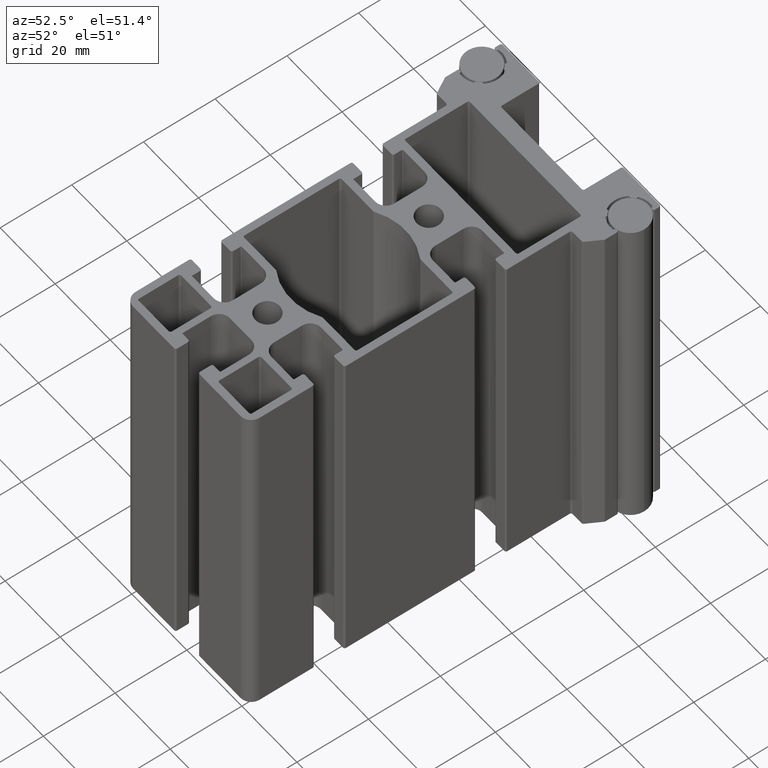
[diagram: clean part render]
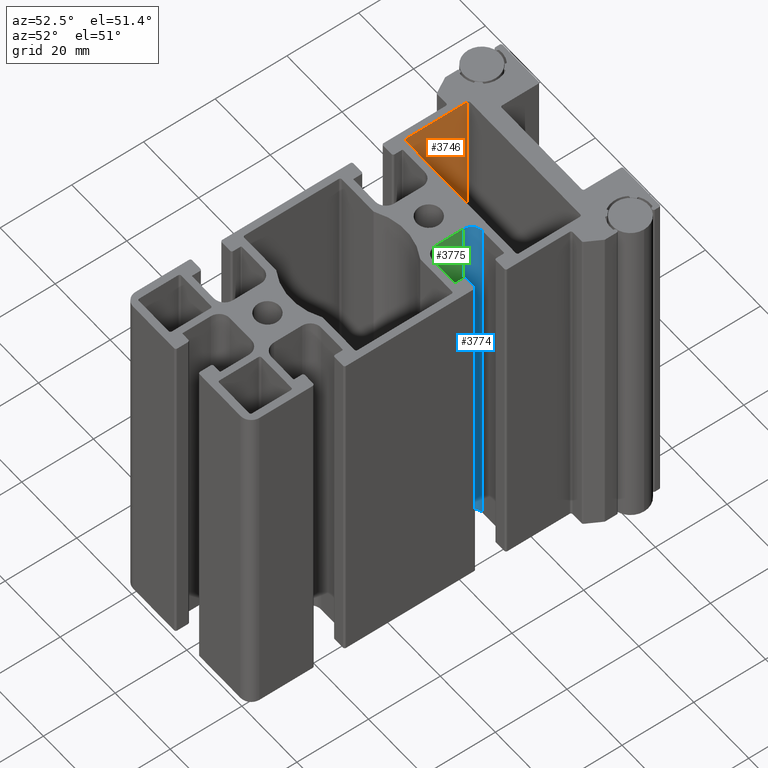
[diagram: same view with three faces highlighted in distinct colors, each labeled with its STEP entity id]
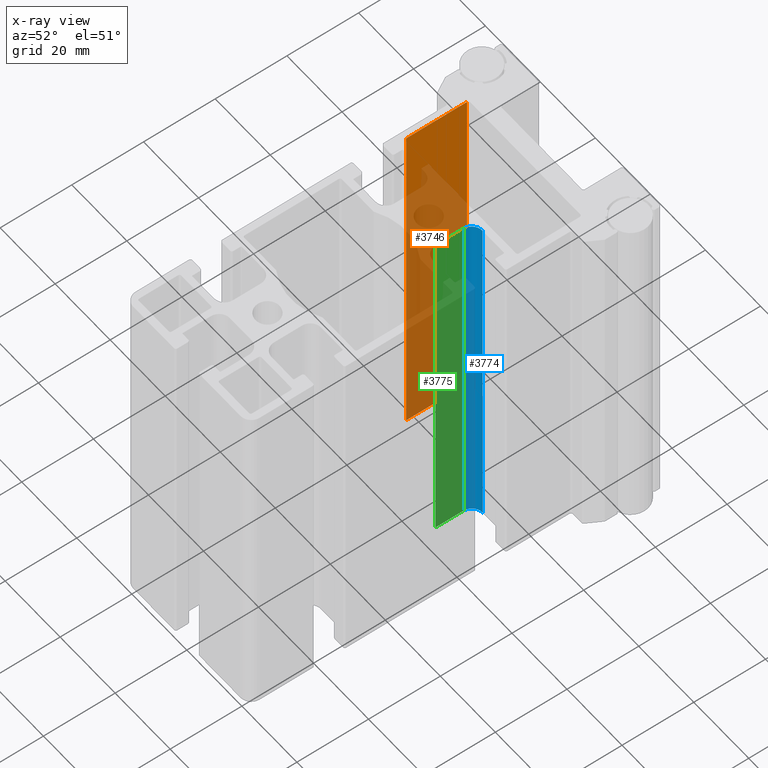
[diagram: x-ray of the same camera — body ghosted, the three highlighted faces saturated]
A machine part, auxiliary view with three faces highlighted in distinct colors.
The next image is the same camera in x-ray (body ghosted, the three faces saturated) — at least one of them is partly hidden behind the body in this view.
Their STEP definitions:

[orange] entity #3746 — the highlighted planar face has unit normal (-1, 0, 0).
#51=PLANE('',#4037);
#142=FACE_OUTER_BOUND('',#341,.T.);
#341=EDGE_LOOP('',(#2518,#2519,#2520,#2521));
#810=LINE('',#5801,#1153);
#811=LINE('',#5805,#1154);
#812=LINE('',#5807,#1155);
#813=LINE('',#5808,#1156);
#1153=VECTOR('',#4568,10.);
#1154=VECTOR('',#4573,10.);
#1155=VECTOR('',#4574,10.);
#1156=VECTOR('',#4575,10.);
#1501=VERTEX_POINT('',#5798);
#1502=VERTEX_POINT('',#5800);
#1503=VERTEX_POINT('',#5804);
#1504=VERTEX_POINT('',#5806);
#1911=EDGE_CURVE('',#1501,#1502,#810,.T.);
#1913=EDGE_CURVE('',#1503,#1501,#811,.T.);
#1914=EDGE_CURVE('',#1503,#1504,#812,.T.);
#1915=EDGE_CURVE('',#1502,#1504,#813,.T.);
#2518=ORIENTED_EDGE('',*,*,#1911,.F.);
#2519=ORIENTED_EDGE('',*,*,#1913,.F.);
#2520=ORIENTED_EDGE('',*,*,#1914,.T.);
#2521=ORIENTED_EDGE('',*,*,#1915,.F.);
#3746=ADVANCED_FACE('',(#142),#51,.F.);
#4037=AXIS2_PLACEMENT_3D('',#5803,#4571,#4572);
#4568=DIRECTION('',(0.,0.,1.));
#4571=DIRECTION('center_axis',(-1.,0.,0.));
#4572=DIRECTION('ref_axis',(0.,-1.,0.));
#4573=DIRECTION('',(0.,-1.,0.));
#4574=DIRECTION('',(0.,0.,1.));
#4575=DIRECTION('',(0.,1.,0.));
#5798=CARTESIAN_POINT('',(-20.4999906320825,76.8999940206052,-50.));
#5800=CARTESIAN_POINT('',(-20.4999906320825,76.8999940206052,50.));
#5801=CARTESIAN_POINT('',(-20.4999906320826,76.8999940206052,0.));
#5803=CARTESIAN_POINT('Origin',(-20.4999906320826,93.899994020605,0.));
#5804=CARTESIAN_POINT('',(-20.4999906320825,93.899994020605,-50.));
#5805=CARTESIAN_POINT('',(-20.4999906320826,74.1789510543363,-50.));
#5806=CARTESIAN_POINT('',(-20.4999906320825,93.899994020605,50.));
#5807=CARTESIAN_POINT('',(-20.4999906320826,93.899994020605,0.));
#5808=CARTESIAN_POINT('',(-20.4999906320826,74.1789510543363,50.));

[blue] entity #3774 — the highlighted cylindrical surface (edge-blend (fillet) strip) has radius 3 mm, axis along (0, 0, 1).
#170=FACE_OUTER_BOUND('',#375,.T.);
#375=EDGE_LOOP('',(#2820,#2821,#2822,#2823));
#582=CIRCLE('',#4084,3.);
#678=CIRCLE('',#4187,3.);
#916=LINE('',#6256,#1259);
#917=LINE('',#6260,#1260);
#1259=VECTOR('',#4974,10.);
#1260=VECTOR('',#4979,10.);
#1550=VERTEX_POINT('',#5940);
#1551=VERTEX_POINT('',#5942);
#1701=VERTEX_POINT('',#6254);
#1702=VERTEX_POINT('',#6258);
#1982=EDGE_CURVE('',#1550,#1551,#582,.T.);
#2139=EDGE_CURVE('',#1701,#1550,#916,.T.);
#2140=EDGE_CURVE('',#1702,#1701,#678,.T.);
#2141=EDGE_CURVE('',#1702,#1551,#917,.T.);
#2820=ORIENTED_EDGE('',*,*,#2139,.F.);
#2821=ORIENTED_EDGE('',*,*,#2140,.F.);
#2822=ORIENTED_EDGE('',*,*,#2141,.T.);
#2823=ORIENTED_EDGE('',*,*,#1982,.F.);
#3631=CYLINDRICAL_SURFACE('',#4186,3.);
#3774=ADVANCED_FACE('',(#170),#3631,.F.);
#4084=AXIS2_PLACEMENT_3D('',#5943,#4709,#4710);
#4186=AXIS2_PLACEMENT_3D('',#6257,#4975,#4976);
#4187=AXIS2_PLACEMENT_3D('',#6259,#4977,#4978);
#4709=DIRECTION('center_axis',(0.,0.,1.));
#4710=DIRECTION('ref_axis',(0.,1.,0.));
#4974=DIRECTION('',(0.,0.,-1.));
#4975=DIRECTION('center_axis',(0.,0.,1.));
#4976=DIRECTION('ref_axis',(0.,1.,0.));
#4977=DIRECTION('center_axis',(0.,0.,-1.));
#4978=DIRECTION('ref_axis',(0.,1.,0.));
#4979=DIRECTION('',(0.,0.,-1.));
#5940=CARTESIAN_POINT('',(10.5000003855163,74.4000004538773,-50.));
#5942=CARTESIAN_POINT('',(7.50000038551629,71.4000004538773,-50.));
#5943=CARTESIAN_POINT('Origin',(10.5000003855163,71.4000004538773,-50.));
#6254=CARTESIAN_POINT('',(10.5000003855163,74.4000004538773,50.));
#6256=CARTESIAN_POINT('',(10.5000003855163,74.4000004538773,0.));
#6257=CARTESIAN_POINT('Origin',(10.5000003855163,71.4000004538773,0.));
#6258=CARTESIAN_POINT('',(7.50000038551629,71.4000004538773,50.));
#6259=CARTESIAN_POINT('Origin',(10.5000003855163,71.4000004538773,50.));
#6260=CARTESIAN_POINT('',(7.50000038551629,71.4000004538773,0.));

[green] entity #3775 — the highlighted planar face has unit normal (1, 0, 0).
#65=PLANE('',#4188);
#171=FACE_OUTER_BOUND('',#376,.T.);
#376=EDGE_LOOP('',(#2824,#2825,#2826,#2827));
#855=LINE('',#5945,#1198);
#917=LINE('',#6260,#1260);
#918=LINE('',#6263,#1261);
#919=LINE('',#6264,#1262);
#1198=VECTOR('',#4711,10.);
#1260=VECTOR('',#4979,10.);
#1261=VECTOR('',#4982,10.);
#1262=VECTOR('',#4983,10.);
#1551=VERTEX_POINT('',#5942);
#1552=VERTEX_POINT('',#5944);
#1702=VERTEX_POINT('',#6258);
#1703=VERTEX_POINT('',#6262);
#1983=EDGE_CURVE('',#1551,#1552,#855,.T.);
#2141=EDGE_CURVE('',#1702,#1551,#917,.T.);
#2142=EDGE_CURVE('',#1703,#1702,#918,.T.);
#2143=EDGE_CURVE('',#1703,#1552,#919,.T.);
#2824=ORIENTED_EDGE('',*,*,#2141,.F.);
#2825=ORIENTED_EDGE('',*,*,#2142,.F.);
#2826=ORIENTED_EDGE('',*,*,#2143,.T.);
#2827=ORIENTED_EDGE('',*,*,#1983,.F.);
#3775=ADVANCED_FACE('',(#171),#65,.T.);
#4188=AXIS2_PLACEMENT_3D('',#6261,#4980,#4981);
#4711=DIRECTION('',(0.,-1.,0.));
#4979=DIRECTION('',(0.,0.,-1.));
#4980=DIRECTION('center_axis',(1.,0.,0.));
#4981=DIRECTION('ref_axis',(0.,1.,0.));
#4982=DIRECTION('',(0.,1.,0.));
#4983=DIRECTION('',(0.,0.,-1.));
#5942=CARTESIAN_POINT('',(7.50000038551629,71.4000004538773,-50.));
#5944=CARTESIAN_POINT('',(7.50000038551629,63.6000003702059,-50.));
#5945=CARTESIAN_POINT('',(7.50000038551629,71.4000004538773,-50.));
#6258=CARTESIAN_POINT('',(7.50000038551629,71.4000004538773,50.));
#6260=CARTESIAN_POINT('',(7.50000038551629,71.4000004538773,0.));
#6261=CARTESIAN_POINT('Origin',(7.50000038551629,63.6000003702059,0.));
#6262=CARTESIAN_POINT('',(7.50000038551629,63.6000003702059,50.));
#6263=CARTESIAN_POINT('',(7.50000038551629,71.4000004538773,50.));
#6264=CARTESIAN_POINT('',(7.50000038551629,63.6000003702059,0.));